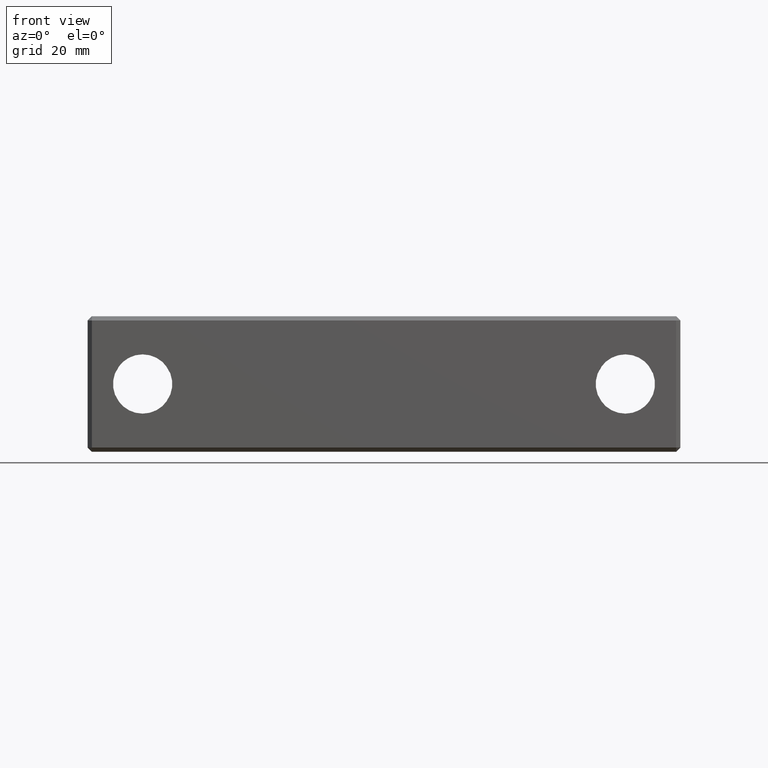
[diagram: clean part render]
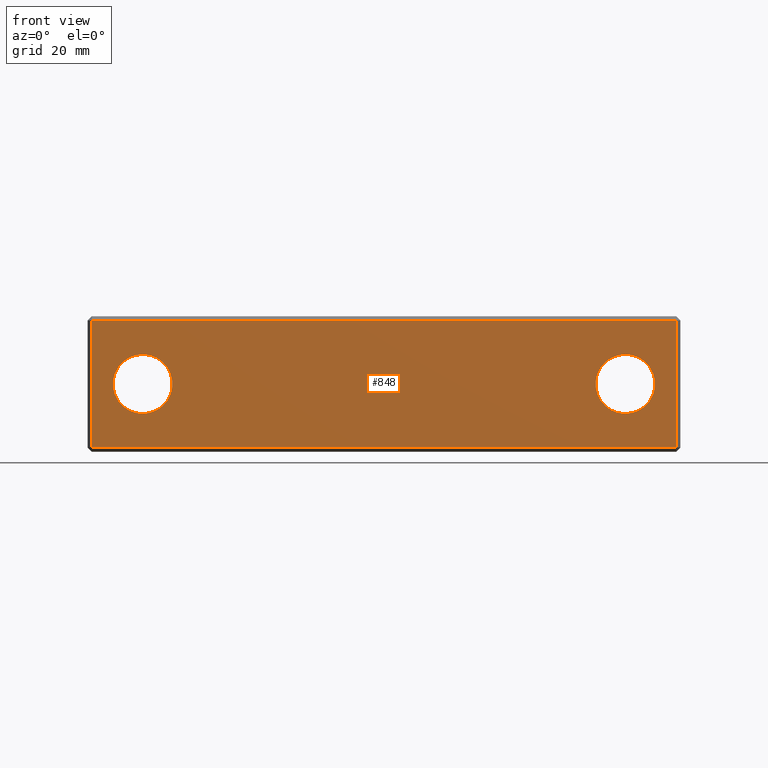
[diagram: same view with one face highlighted and labeled with its STEP entity id]
A machine part, front view. The second image highlights one B-rep face of the part: STEP entity #848.
In plain terms, the highlighted planar face has unit normal (-0, 1, 0).
Its self-contained STEP definition (entity closure, byte-faithful):
#827 = EDGE_CURVE ( 'NONE', #835, #842, #2799, .T. ) ;
#830 = EDGE_CURVE ( 'NONE', #843, #835, #2794, .T. ) ;
#831 = ORIENTED_EDGE ( 'NONE', *, *, #833, .T. ) ;
#832 = EDGE_LOOP ( 'NONE', ( #831, #1290 ) ) ;
#833 = EDGE_CURVE ( 'NONE', #1712, #1716, #2790, .T. ) ;
#834 = ORIENTED_EDGE ( 'NONE', *, *, #827, .T. ) ;
#835 = VERTEX_POINT ( 'NONE', #2785 ) ;
#838 = EDGE_CURVE ( 'NONE', #839, #843, #2783, .T. ) ;
#839 = VERTEX_POINT ( 'NONE', #2779 ) ;
#840 = ORIENTED_EDGE ( 'NONE', *, *, #838, .T. ) ;
#842 = VERTEX_POINT ( 'NONE', #2842 ) ;
#843 = VERTEX_POINT ( 'NONE', #2837 ) ;
#844 = ORIENTED_EDGE ( 'NONE', *, *, #830, .T. ) ;
#848 = ADVANCED_FACE ( 'NONE', ( #2830, #2829, #2828 ), #2827, .F. ) ;
#849 = EDGE_LOOP ( 'NONE', ( #851, #840, #844, #834 ) ) ;
#850 = EDGE_CURVE ( 'NONE', #842, #839, #2822, .T. ) ;
#851 = ORIENTED_EDGE ( 'NONE', *, *, #850, .T. ) ;
#1028 = VERTEX_POINT ( 'NONE', #3120 ) ;
#1030 = VERTEX_POINT ( 'NONE', #3119 ) ;
#1064 = EDGE_CURVE ( 'NONE', #1028, #1030, #3241, .T. ) ;
#1081 = EDGE_CURVE ( 'NONE', #1716, #1712, #3298, .T. ) ;
#1285 = ORIENTED_EDGE ( 'NONE', *, *, #1064, .T. ) ;
#1290 = ORIENTED_EDGE ( 'NONE', *, *, #1081, .T. ) ;
#1298 = EDGE_CURVE ( 'NONE', #1030, #1028, #3848, .T. ) ;
#1299 = ORIENTED_EDGE ( 'NONE', *, *, #1298, .T. ) ;
#1300 = EDGE_LOOP ( 'NONE', ( #1299, #1285 ) ) ;
#1712 = VERTEX_POINT ( 'NONE', #4554 ) ;
#1716 = VERTEX_POINT ( 'NONE', #4608 ) ;
#2779 = CARTESIAN_POINT ( 'NONE',  ( -68.99999999999997200, 1.224646799147371200E-016, 14.99999999999998600 ) ) ;
#2780 = DIRECTION ( 'NONE',  ( 0.0000000000000000000, 0.0000000000000000000, -1.000000000000000000 ) ) ;
#2781 = VECTOR ( 'NONE', #2780, 1000.000000000000000 ) ;
#2782 = CARTESIAN_POINT ( 'NONE',  ( -68.99999999999997200, 1.224646799147371200E-016, 16.00000000000000000 ) ) ;
#2783 = LINE ( 'NONE', #2782, #2781 ) ;
#2785 = CARTESIAN_POINT ( 'NONE',  ( 69.00000000000001400, 1.702259050814821100E-014, -14.99999999999998600 ) ) ;
#2786 = DIRECTION ( 'NONE',  ( 0.0000000000000000000, 0.0000000000000000000, 1.000000000000000000 ) ) ;
#2787 = DIRECTION ( 'NONE',  ( -0.0000000000000000000, 1.000000000000000000, -0.0000000000000000000 ) ) ;
#2788 = CARTESIAN_POINT ( 'NONE',  ( -56.99999999999995700, -6.938893903907228400E-014, 0.0000000000000000000 ) ) ;
#2789 = AXIS2_PLACEMENT_3D ( 'NONE', #2788, #2787, #2786 ) ;
#2790 = CIRCLE ( 'NONE', #2789, 6.999999999999978700 ) ;
#2791 = DIRECTION ( 'NONE',  ( 1.000000000000000000, 1.224646799147353200E-016, 0.0000000000000000000 ) ) ;
#2792 = VECTOR ( 'NONE', #2791, 1000.000000000000000 ) ;
#2793 = CARTESIAN_POINT ( 'NONE',  ( -69.99999999999998600, 0.0000000000000000000, -14.99999999999998600 ) ) ;
#2794 = LINE ( 'NONE', #2793, #2792 ) ;
#2796 = DIRECTION ( 'NONE',  ( 0.0000000000000000000, 0.0000000000000000000, 1.000000000000000000 ) ) ;
#2797 = VECTOR ( 'NONE', #2796, 1000.000000000000000 ) ;
#2798 = CARTESIAN_POINT ( 'NONE',  ( 69.00000000000001400, 1.702259050814821100E-014, 16.00000000000000000 ) ) ;
#2799 = LINE ( 'NONE', #2798, #2797 ) ;
#2819 = DIRECTION ( 'NONE',  ( -1.000000000000000000, -1.224646799147353200E-016, -0.0000000000000000000 ) ) ;
#2820 = VECTOR ( 'NONE', #2819, 1000.000000000000000 ) ;
#2821 = CARTESIAN_POINT ( 'NONE',  ( -69.99999999999998600, 0.0000000000000000000, 14.99999999999998600 ) ) ;
#2822 = LINE ( 'NONE', #2821, #2820 ) ;
#2823 = DIRECTION ( 'NONE',  ( -1.000000000000000000, -1.224646799147353200E-016, 0.0000000000000000000 ) ) ;
#2824 = DIRECTION ( 'NONE',  ( -1.224646799147353200E-016, 1.000000000000000000, 0.0000000000000000000 ) ) ;
#2825 = AXIS2_PLACEMENT_3D ( 'NONE', #2826, #2824, #2823 ) ;
#2826 = CARTESIAN_POINT ( 'NONE',  ( -69.99999999999998600, 0.0000000000000000000, 16.00000000000000000 ) ) ;
#2827 = PLANE ( 'NONE',  #2825 ) ;
#2828 = FACE_BOUND ( 'NONE', #1300, .T. ) ;
#2829 = FACE_BOUND ( 'NONE', #832, .T. ) ;
#2830 = FACE_OUTER_BOUND ( 'NONE', #849, .T. ) ;
#2837 = CARTESIAN_POINT ( 'NONE',  ( -68.99999999999997200, 1.224646799147371200E-016, -14.99999999999998600 ) ) ;
#2842 = CARTESIAN_POINT ( 'NONE',  ( 69.00000000000001400, 1.702259050814821100E-014, 14.99999999999998600 ) ) ;
#3119 = CARTESIAN_POINT ( 'NONE',  ( 57.00000000000004300, -6.938893903907228400E-014, 6.999999999999971600 ) ) ;
#3120 = CARTESIAN_POINT ( 'NONE',  ( 57.00000000000004300, -6.938893903907228400E-014, -6.999999999999999100 ) ) ;
#3241 = CIRCLE ( 'NONE', #3268, 6.999999999999985800 ) ;
#3265 = DIRECTION ( 'NONE',  ( 0.0000000000000000000, 0.0000000000000000000, 1.000000000000000000 ) ) ;
#3266 = DIRECTION ( 'NONE',  ( -0.0000000000000000000, 1.000000000000000000, -0.0000000000000000000 ) ) ;
#3267 = CARTESIAN_POINT ( 'NONE',  ( 57.00000000000004300, -6.938893903907228400E-014, -1.396097351027982600E-014 ) ) ;
#3268 = AXIS2_PLACEMENT_3D ( 'NONE', #3267, #3266, #3265 ) ;
#3294 = DIRECTION ( 'NONE',  ( 0.0000000000000000000, 0.0000000000000000000, 1.000000000000000000 ) ) ;
#3295 = DIRECTION ( 'NONE',  ( -0.0000000000000000000, 1.000000000000000000, -0.0000000000000000000 ) ) ;
#3296 = CARTESIAN_POINT ( 'NONE',  ( -56.99999999999995700, -6.938893903907228400E-014, 0.0000000000000000000 ) ) ;
#3297 = AXIS2_PLACEMENT_3D ( 'NONE', #3296, #3295, #3294 ) ;
#3298 = CIRCLE ( 'NONE', #3297, 6.999999999999978700 ) ;
#3844 = DIRECTION ( 'NONE',  ( 0.0000000000000000000, 0.0000000000000000000, 1.000000000000000000 ) ) ;
#3845 = DIRECTION ( 'NONE',  ( -0.0000000000000000000, 1.000000000000000000, -0.0000000000000000000 ) ) ;
#3846 = CARTESIAN_POINT ( 'NONE',  ( 57.00000000000004300, -6.938893903907228400E-014, -1.396097351027982600E-014 ) ) ;
#3847 = AXIS2_PLACEMENT_3D ( 'NONE', #3846, #3845, #3844 ) ;
#3848 = CIRCLE ( 'NONE', #3847, 6.999999999999985800 ) ;
#4554 = CARTESIAN_POINT ( 'NONE',  ( -56.99999999999995700, -6.938893903907228400E-014, 6.999999999999978700 ) ) ;
#4608 = CARTESIAN_POINT ( 'NONE',  ( -56.99999999999995700, -6.938893903907228400E-014, -6.999999999999978700 ) ) ;